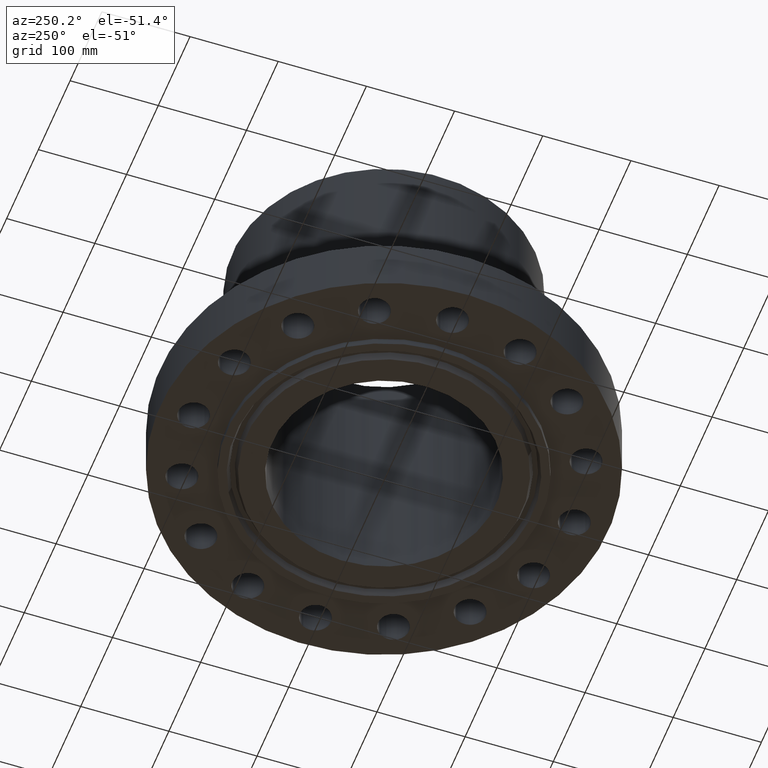
[diagram: clean part render]
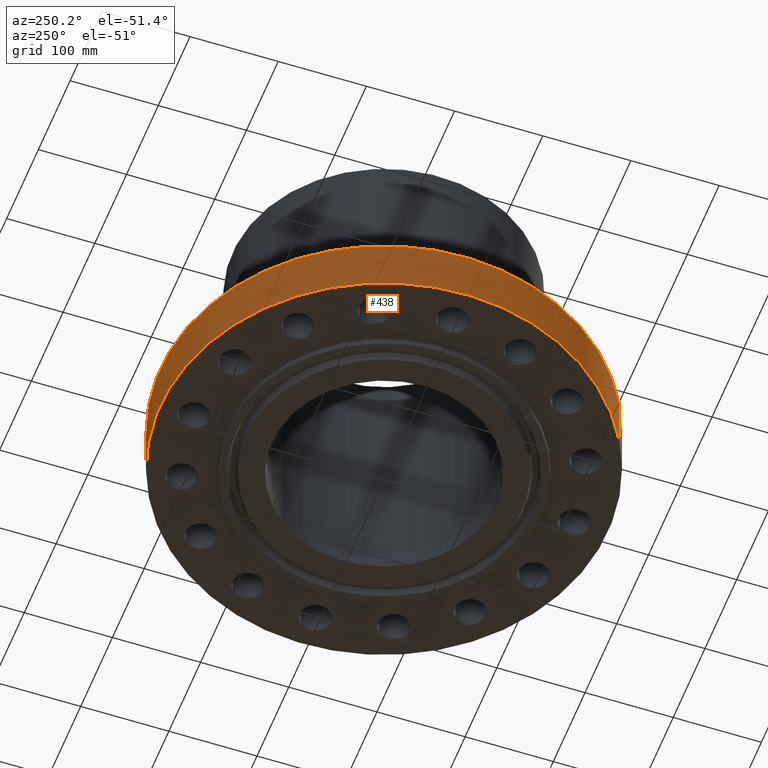
[diagram: same view with one face highlighted and labeled with its STEP entity id]
A machine part, auxiliary view. The second image highlights one B-rep face of the part: STEP entity #438.
In plain terms, the highlighted cylindrical surface (partial cylindrical patch) has radius 254 mm, axis along (0, 0, -1).
Its self-contained STEP definition (entity closure, byte-faithful):
#82=AXIS2_PLACEMENT_3D('Circle Axis2P3D',#80,#81,$) ;
#411=AXIS2_PLACEMENT_3D('Cylinder Axis2P3D',#408,#409,#410) ;
#422=AXIS2_PLACEMENT_3D('Circle Axis2P3D',#420,#421,$) ;
#80=CARTESIAN_POINT('Axis2P3D Location',(0.,0.,0.)) ;
#84=CARTESIAN_POINT('Vertex',(-4.79425538606,-8.77582561894,1.1189649382E-015)) ;
#86=CARTESIAN_POINT('Vertex',(4.79425538606,8.77582561894,1.1189649382E-015)) ;
#408=CARTESIAN_POINT('Axis2P3D Location',(0.,0.,5.71850000002)) ;
#413=CARTESIAN_POINT('Line Origine',(-4.79425538606,-8.77582561894,1.25000000001)) ;
#417=CARTESIAN_POINT('Vertex',(-4.79425538606,-8.77582561894,2.50000000001)) ;
#420=CARTESIAN_POINT('Axis2P3D Location',(0.,0.,2.50000000001)) ;
#424=CARTESIAN_POINT('Vertex',(4.79425538606,8.77582561894,2.50000000001)) ;
#427=CARTESIAN_POINT('Line Origine',(4.79425538606,8.77582561894,1.25000000001)) ;
#81=DIRECTION('Axis2P3D Direction',(0.,0.,-0.0393700787402)) ;
#409=DIRECTION('Axis2P3D Direction',(0.,0.,-0.0393700787402)) ;
#410=DIRECTION('Axis2P3D XDirection',(0.0188750212049,0.0345504945626,0.)) ;
#414=DIRECTION('Vector Direction',(0.,0.,-0.0393700787402)) ;
#421=DIRECTION('Axis2P3D Direction',(0.,0.,-0.0393700787402)) ;
#428=DIRECTION('Vector Direction',(0.,0.,-0.0393700787402)) ;
#415=VECTOR('Line Direction',#414,0.0393700787402) ;
#429=VECTOR('Line Direction',#428,0.0393700787402) ;
#433=ORIENTED_EDGE('',*,*,#88,.F.) ;
#434=ORIENTED_EDGE('',*,*,#419,.T.) ;
#435=ORIENTED_EDGE('',*,*,#426,.T.) ;
#436=ORIENTED_EDGE('',*,*,#431,.F.) ;
#438=ADVANCED_FACE('PartBody',(#437),#412,.T.) ;
#83=CIRCLE('generated circle',#82,10.) ;
#423=CIRCLE('generated circle',#422,10.) ;
#412=CYLINDRICAL_SURFACE('generated cylinder',#411,10.) ;
#88=EDGE_CURVE('',#85,#87,#83,.T.) ;
#419=EDGE_CURVE('',#85,#418,#416,.F.) ;
#426=EDGE_CURVE('',#418,#425,#423,.T.) ;
#431=EDGE_CURVE('',#87,#425,#430,.F.) ;
#432=EDGE_LOOP('',(#433,#434,#435,#436)) ;
#437=FACE_OUTER_BOUND('',#432,.T.) ;
#416=LINE('Line',#413,#415) ;
#430=LINE('Line',#427,#429) ;
#85=VERTEX_POINT('',#84) ;
#87=VERTEX_POINT('',#86) ;
#418=VERTEX_POINT('',#417) ;
#425=VERTEX_POINT('',#424) ;